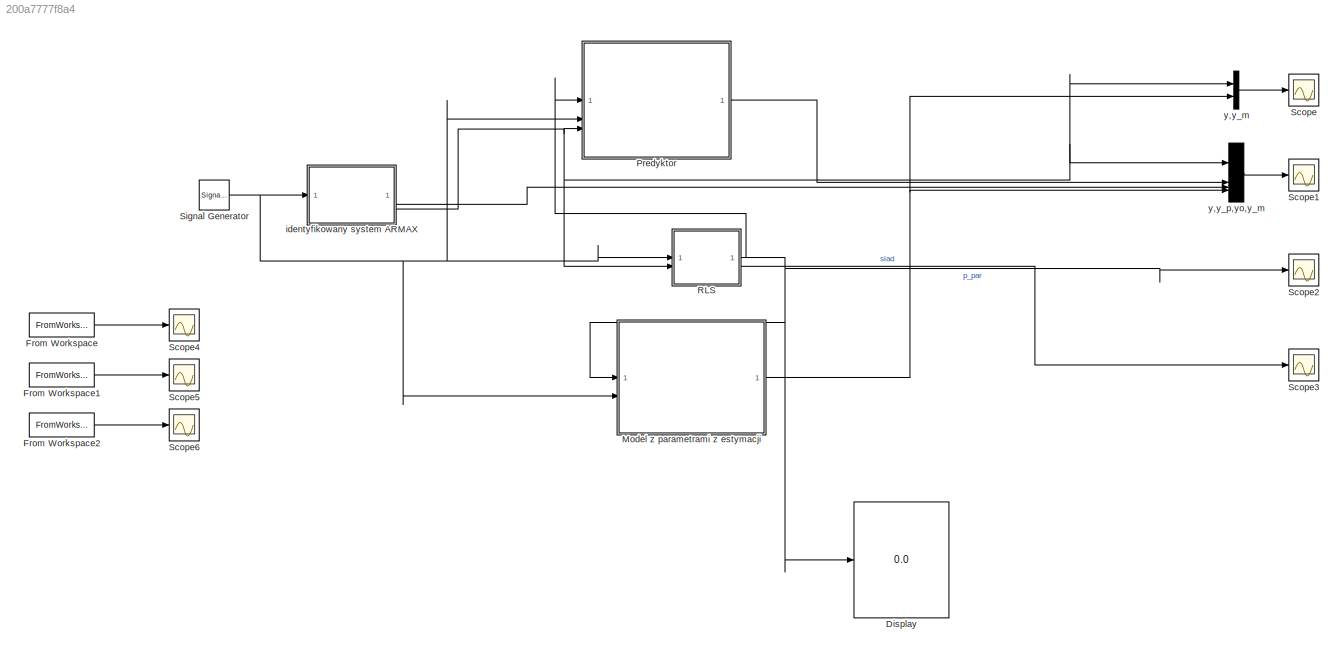
MODEL mdl_200a7777f8a4
KIND model
CONFIG AbsTol = auto
CONFIG EnableMultiTasking = on
CONFIG FixedStep = auto
CONFIG MaxStep = auto
CONFIG MinStep = auto
CONFIG RelTol = 1e-3
CONFIG SampleTimeConstraint = Unconstrained
CONFIG SolverName = FixedStepDiscrete
CONFIG StartTime = 0.0
CONFIG StopTime = tend
BLOCK [Display] Display
  Decimation = 1
BLOCK [FromWorkspace] From Workspace
  SampleTime = Tp
  VariableName = to_simA
BLOCK [FromWorkspace] From Workspace1
  SampleTime = Tp
  VariableName = to_simB
BLOCK [FromWorkspace] From Workspace2
  SampleTime = Tp
  VariableName = to_simC
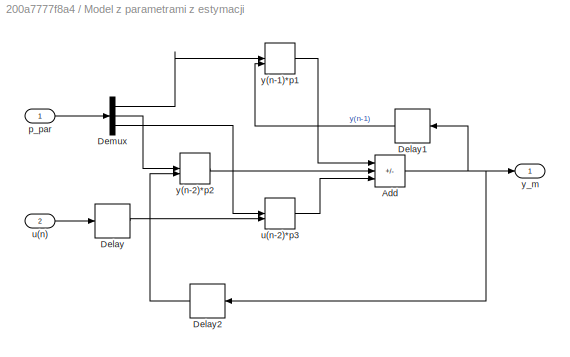
BLOCK [SubSystem] Model z parametrami z estymacji
BLOCK [Sum] Model z parametrami z estymacji/Add
  IconShape = rectangular
  Inputs = --+
BLOCK [Delay] Model z parametrami z estymacji/Delay
  InitialCondition = 0
  InputPortMap = u0
BLOCK [Delay] Model z parametrami z estymacji/Delay1
  DelayLength = 1
  InitialCondition = 0
  InputPortMap = u0
  NameLocation = top
BLOCK [Delay] Model z parametrami z estymacji/Delay2
  InitialCondition = 0
  InputPortMap = u0
  NameLocation = top
BLOCK [Demux] Model z parametrami z estymacji/Demux
  Outputs = 3
BLOCK [Inport] Model z parametrami z estymacji/p_par
BLOCK [Inport] Model z parametrami z estymacji/u(n)
  Port = 2
BLOCK [DotProduct] Model z parametrami z estymacji/u(n-2)*p3
  OutDataTypeStr = Inherit: Inherit via internal rule
BLOCK [DotProduct] Model z parametrami z estymacji/y(n-1)*p1
  OutDataTypeStr = Inherit: Inherit via internal rule
BLOCK [DotProduct] Model z parametrami z estymacji/y(n-2)*p2
  OutDataTypeStr = Inherit: Inherit via internal rule
BLOCK [Outport] Model z parametrami z estymacji/y_m
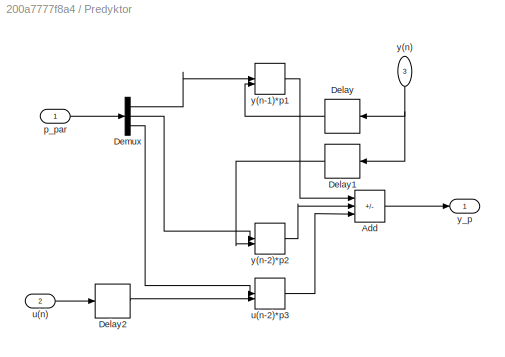
BLOCK [SubSystem] Predyktor
BLOCK [Sum] Predyktor/Add
  IconShape = rectangular
  Inputs = --+
BLOCK [Delay] Predyktor/Delay
  DelayLength = 1
  InitialCondition = 0
  InputPortMap = u0
  NameLocation = top
BLOCK [Delay] Predyktor/Delay1
  InitialCondition = 0
  InputPortMap = u0
  NameLocation = top
BLOCK [Delay] Predyktor/Delay2
  InitialCondition = 0
  InputPortMap = u0
BLOCK [Demux] Predyktor/Demux
  Outputs = 3
BLOCK [Inport] Predyktor/p_par
BLOCK [Inport] Predyktor/u(n)
  Port = 2
BLOCK [DotProduct] Predyktor/u(n-2)*p3
  OutDataTypeStr = Inherit: Inherit via internal rule
BLOCK [Inport] Predyktor/y(n)
  NameLocation = left
  Port = 3
BLOCK [DotProduct] Predyktor/y(n-1)*p1
  OutDataTypeStr = Inherit: Inherit via internal rule
BLOCK [DotProduct] Predyktor/y(n-2)*p2
  OutDataTypeStr = Inherit: Inherit via internal rule
BLOCK [Outport] Predyktor/y_p
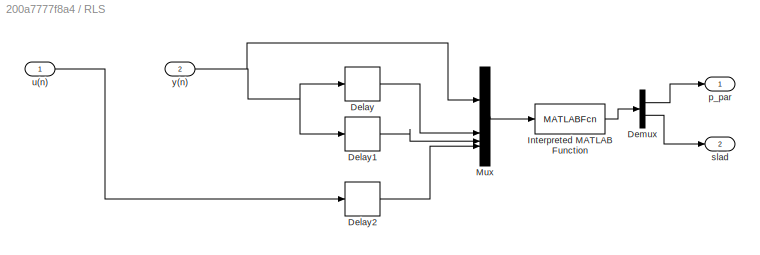
BLOCK [SubSystem] RLS
BLOCK [Delay] RLS/Delay
  DelayLength = 1
  InitialCondition = 0
  InputPortMap = u0
BLOCK [Delay] RLS/Delay1
  InitialCondition = 0
  InputPortMap = u0
BLOCK [Delay] RLS/Delay2
  InitialCondition = 0
  InputPortMap = u0
BLOCK [Demux] RLS/Demux
  Outputs = [3;1]
BLOCK [MATLABFcn] RLS/Interpreted MATLAB Function
  MATLABFcn = RLS_fcn
  OutputDimensions = 4
BLOCK [Mux] RLS/Mux
  DisplayOption = bar
BLOCK [Outport] RLS/p_par
BLOCK [Outport] RLS/slad
  Port = 2
BLOCK [Inport] RLS/u(n)
BLOCK [Inport] RLS/y(n)
  Port = 2
BLOCK [Scope] Scope
  Floating = off
  NumInputPorts = 1
  ScopeSpecificationString = Simulink.scopes.TimeScopeBlockCfg('CurrentConfiguration', extmgr.ConfigurationSet(extmgr.Configuration('Core','General UI',true),extmgr.Configuration('Core','Source UI',true),extmgr.Configuration('Sources','WiredSimulink',true,'DataLoggingVariableName','ScopeData1'),extmgr.Configuration('Visuals','Time Domain',true),extmgr.Configuration('Tools','Plot Navigation',true),extmgr.Configuration('Tools',...<+40ch>
BLOCK [Scope] Scope1
  Floating = off
  NumInputPorts = 1
  ScopeSpecificationString = Simulink.scopes.TimeScopeBlockCfg('CurrentConfiguration', extmgr.ConfigurationSet(extmgr.Configuration('Core','General UI',true),extmgr.Configuration('Core','Source UI',true),extmgr.Configuration('Sources','WiredSimulink',true,'DataLoggingVariableName','ScopeData2'),extmgr.Configuration('Visuals','Time Domain',true,'SerializedDisplays',{struct('MinYLimReal','-6.51529','MaxYLimReal','6.51637','YLab...<+1359ch>
BLOCK [Scope] Scope2
  Floating = off
  NumInputPorts = 1
  ScopeSpecificationString = Simulink.scopes.TimeScopeBlockCfg('CurrentConfiguration', extmgr.ConfigurationSet(extmgr.Configuration('Core','General UI',true),extmgr.Configuration('Core','Source UI',true),extmgr.Configuration('Sources','WiredSimulink',true,'DataLoggingVariableName','ScopeData3'),extmgr.Configuration('Visuals','Time Domain',true,'SerializedDisplays',{struct('MinYLimReal','-0.97221','MaxYLimReal','0.71228','YLab...<+1386ch>
BLOCK [Scope] Scope3
  Floating = off
  NumInputPorts = 1
  ScopeSpecificationString = Simulink.scopes.TimeScopeBlockCfg('CurrentConfiguration', extmgr.ConfigurationSet(extmgr.Configuration('Core','General UI',true),extmgr.Configuration('Core','Source UI',true),extmgr.Configuration('Sources','WiredSimulink',true,'DataLoggingVariableName','ScopeData4'),extmgr.Configuration('Visuals','Time Domain',true),extmgr.Configuration('Tools','Plot Navigation',true),extmgr.Configuration('Tools',...<+40ch>
BLOCK [Scope] Scope4
  Floating = off
  NumInputPorts = 1
  ScopeSpecificationString = Simulink.scopes.TimeScopeBlockCfg('CurrentConfiguration', extmgr.ConfigurationSet(extmgr.Configuration('Core','General UI',true),extmgr.Configuration('Core','Source UI',true),extmgr.Configuration('Sources','WiredSimulink',true,'DataLoggingVariableName','ScopeData1'),extmgr.Configuration('Visuals','Time Domain',true),extmgr.Configuration('Tools','Plot Navigation',true),extmgr.Configuration('Tools',...<+40ch>
BLOCK [Scope] Scope5
  Floating = off
  NumInputPorts = 1
  ScopeSpecificationString = Simulink.scopes.TimeScopeBlockCfg('CurrentConfiguration', extmgr.ConfigurationSet(extmgr.Configuration('Core','General UI',true),extmgr.Configuration('Core','Source UI',true),extmgr.Configuration('Sources','WiredSimulink',true,'DataLoggingVariableName','ScopeData2'),extmgr.Configuration('Visuals','Time Domain',true),extmgr.Configuration('Tools','Plot Navigation',true),extmgr.Configuration('Tools',...<+40ch>
BLOCK [Scope] Scope6
  Floating = off
  NumInputPorts = 1
  ScopeSpecificationString = Simulink.scopes.TimeScopeBlockCfg('CurrentConfiguration', extmgr.ConfigurationSet(extmgr.Configuration('Core','General UI',true),extmgr.Configuration('Core','Source UI',true),extmgr.Configuration('Sources','WiredSimulink',true,'DataLoggingVariableName','ScopeData3'),extmgr.Configuration('Visuals','Time Domain',true),extmgr.Configuration('Tools','Plot Navigation',true),extmgr.Configuration('Tools',...<+40ch>
BLOCK [SignalGenerator] Signal Generator
  Frequency = 0.025
  WaveForm = square
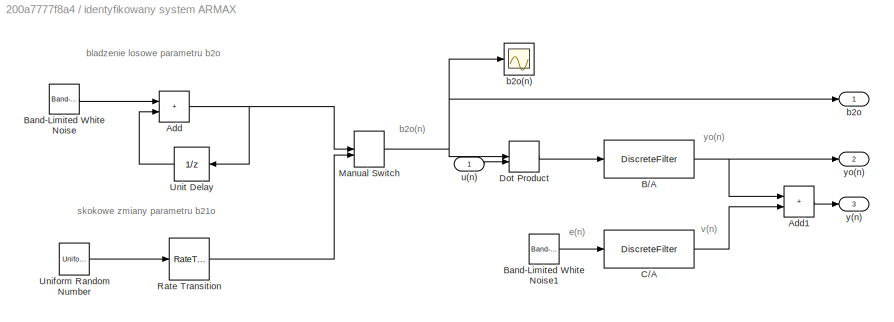
BLOCK [SubSystem] identyfikowany system ARMAX
BLOCK [Sum] identyfikowany system ARMAX/Add
  IconShape = rectangular
BLOCK [Sum] identyfikowany system ARMAX/Add1
  IconShape = rectangular
BLOCK [DiscreteFilter] identyfikowany system ARMAX/B//A
  Denominator = [1 -0.8 -0.1]
  InputPortMap = u0
  Numerator = [0 0 1]
  SampleTime = Tp
BLOCK [Reference] identyfikowany system ARMAX/Band-Limited White Noise  REF=simulink/Sources/Band-Limited
White Noise
  SourceBlock = simulink/Sources/Band-Limited\nWhite Noise
  SourceType = Band-Limited White Noise.
BLOCK [Reference] identyfikowany system ARMAX/Band-Limited White Noise1  REF=simulink/Sources/Band-Limited
White Noise
  SourceBlock = simulink/Sources/Band-Limited\nWhite Noise
  SourceType = Band-Limited White Noise.
BLOCK [DiscreteFilter] identyfikowany system ARMAX/C//A
  Denominator = [1 -0.8 -0.1]
  InputPortMap = u0
  Numerator = [1 c1o]
  SampleTime = Tp
BLOCK [DotProduct] identyfikowany system ARMAX/Dot Product
  OutDataTypeStr = Inherit: Inherit via internal rule
BLOCK [ManualSwitch] identyfikowany system ARMAX/Manual Switch
  CurrentSetting = 0
BLOCK [RateTransition] identyfikowany system ARMAX/Rate Transition
  InitialCondition = 0.5
  OutPortSampleTime = Tp
BLOCK [UniformRandomNumber] identyfikowany system ARMAX/Uniform Random Number
  Maximum = 0.8
  Minimum = 0.1
  SampleTime = Td
  Seed = 2
BLOCK [UnitDelay] identyfikowany system ARMAX/Unit Delay
  NameLocation = top
  SampleTime = Tp
BLOCK [Outport] identyfikowany system ARMAX/b2o
BLOCK [Scope] identyfikowany system ARMAX/b2o(n)
  Floating = off
  NumInputPorts = 1
  ScopeSpecificationString = C++SS(StrPVP('Location','[188, 390, 512, 629]'),StrPVP('Open','off'),MxPVP('AxesTitles',54,'struct(''axes1'',''%<SignalLabel>'')'),StrPVP('DataFormat','StructureWithTime'),StrPVP('BlockParamSampleTime','0'),StrPVP('LimitDataPoints','on'),StrPVP('Decimation','1'),StrPVP('BlockParamSampleInput','off'))
BLOCK [Inport] identyfikowany system ARMAX/u(n)
BLOCK [Outport] identyfikowany system ARMAX/y(n)
  Port = 3
BLOCK [Outport] identyfikowany system ARMAX/yo(n)
  Port = 2
BLOCK [Mux] y,y_m
  DisplayOption = bar
  Inputs = 2
BLOCK [Mux] y,y_p,yo,y_m
  DisplayOption = bar
ANNOTATION identyfikowany system ARMAX: b2o(n)
ANNOTATION identyfikowany system ARMAX: bladzenie losowe parametru b2o
ANNOTATION identyfikowany system ARMAX: e(n)
ANNOTATION identyfikowany system ARMAX: skokowe zmiany parametru b21o
ANNOTATION identyfikowany system ARMAX: v(n)
ANNOTATION identyfikowany system ARMAX: yo(n)
LINE From Workspace1:1 -> Scope5:1
LINE From Workspace2:1 -> Scope6:1
LINE From Workspace:1 -> Scope4:1
NET Model z parametrami z estymacji/Add:1 -> Model z parametrami z estymacji/Delay1:1, Model z parametrami z estymacji/Delay2:1, Model z parametrami z estymacji/y_m:1
LINE Model z parametrami z estymacji/Delay1:1 -> Model z parametrami z estymacji/y(n-1)*p1:2
LINE Model z parametrami z estymacji/Delay2:1 -> Model z parametrami z estymacji/y(n-2)*p2:2
LINE Model z parametrami z estymacji/Delay:1 -> Model z parametrami z estymacji/u(n-2)*p3:2
LINE Model z parametrami z estymacji/Demux:1 -> Model z parametrami z estymacji/y(n-1)*p1:1
LINE Model z parametrami z estymacji/Demux:2 -> Model z parametrami z estymacji/y(n-2)*p2:1
LINE Model z parametrami z estymacji/Demux:3 -> Model z parametrami z estymacji/u(n-2)*p3:1
LINE Model z parametrami z estymacji/p_par:1 -> Model z parametrami z estymacji/Demux:1
LINE Model z parametrami z estymacji/u(n):1 -> Model z parametrami z estymacji/Delay:1
LINE Model z parametrami z estymacji/u(n-2)*p3:1 -> Model z parametrami z estymacji/Add:3
LINE Model z parametrami z estymacji/y(n-1)*p1:1 -> Model z parametrami z estymacji/Add:1
LINE Model z parametrami z estymacji/y(n-2)*p2:1 -> Model z parametrami z estymacji/Add:2
NET Model z parametrami z estymacji:1 -> y,y_m:2, y,y_p,yo,y_m:4
LINE Predyktor/Add:1 -> Predyktor/y_p:1
LINE Predyktor/Delay1:1 -> Predyktor/y(n-2)*p2:2
LINE Predyktor/Delay2:1 -> Predyktor/u(n-2)*p3:2
LINE Predyktor/Delay:1 -> Predyktor/y(n-1)*p1:2
LINE Predyktor/Demux:1 -> Predyktor/y(n-1)*p1:1
LINE Predyktor/Demux:2 -> Predyktor/y(n-2)*p2:1
LINE Predyktor/Demux:3 -> Predyktor/u(n-2)*p3:1
LINE Predyktor/p_par:1 -> Predyktor/Demux:1
LINE Predyktor/u(n):1 -> Predyktor/Delay2:1
LINE Predyktor/u(n-2)*p3:1 -> Predyktor/Add:3
NET Predyktor/y(n):1 -> Predyktor/Delay1:1, Predyktor/Delay:1
LINE Predyktor/y(n-1)*p1:1 -> Predyktor/Add:1
LINE Predyktor/y(n-2)*p2:1 -> Predyktor/Add:2
LINE Predyktor:1 -> y,y_p,yo,y_m:2
LINE RLS/Delay1:1 -> RLS/Mux:3
LINE RLS/Delay2:1 -> RLS/Mux:4
LINE RLS/Delay:1 -> RLS/Mux:2
LINE RLS/Demux:1 -> RLS/p_par:1
LINE RLS/Demux:2 -> RLS/slad:1
LINE RLS/Interpreted MATLAB Function:1 -> RLS/Demux:1
LINE RLS/Mux:1 -> RLS/Interpreted MATLAB Function:1
LINE RLS/u(n):1 -> RLS/Delay2:1
NET RLS/y(n):1 -> RLS/Delay1:1, RLS/Delay:1, RLS/Mux:1
NET RLS:1 -> Display:1, Model z parametrami z estymacji:1, Predyktor:1, Scope2:1
LINE RLS:2 -> Scope3:1
NET Signal Generator:1 -> Model z parametrami z estymacji:2, Predyktor:2, RLS:1, identyfikowany system ARMAX:1
LINE identyfikowany system ARMAX/Add1:1 -> identyfikowany system ARMAX/y(n):1
NET identyfikowany system ARMAX/Add:1 -> identyfikowany system ARMAX/Manual Switch:1, identyfikowany system ARMAX/Unit Delay:1
NET identyfikowany system ARMAX/B//A:1 -> identyfikowany system ARMAX/Add1:1, identyfikowany system ARMAX/yo(n):1
LINE identyfikowany system ARMAX/Band-Limited White Noise1:1 -> identyfikowany system ARMAX/C//A:1
LINE identyfikowany system ARMAX/Band-Limited White Noise:1 -> identyfikowany system ARMAX/Add:1
LINE identyfikowany system ARMAX/C//A:1 -> identyfikowany system ARMAX/Add1:2
LINE identyfikowany system ARMAX/Dot Product:1 -> identyfikowany system ARMAX/B//A:1
NET identyfikowany system ARMAX/Manual Switch:1 -> identyfikowany system ARMAX/Dot Product:1, identyfikowany system ARMAX/b2o(n):1, identyfikowany system ARMAX/b2o:1
LINE identyfikowany system ARMAX/Rate Transition:1 -> identyfikowany system ARMAX/Manual Switch:2
LINE identyfikowany system ARMAX/Uniform Random Number:1 -> identyfikowany system ARMAX/Rate Transition:1
LINE identyfikowany system ARMAX/Unit Delay:1 -> identyfikowany system ARMAX/Add:2
LINE identyfikowany system ARMAX/u(n):1 -> identyfikowany system ARMAX/Dot Product:2
LINE identyfikowany system ARMAX:2 -> y,y_p,yo,y_m:3
NET identyfikowany system ARMAX:3 -> Predyktor:3, RLS:2, y,y_m:1, y,y_p,yo,y_m:1
LINE y,y_m:1 -> Scope:1
LINE y,y_p,yo,y_m:1 -> Scope1:1
note: NET lines group one-source signal fan-out (src -> all destinations, sorted); 1:1 wires keep LINE
